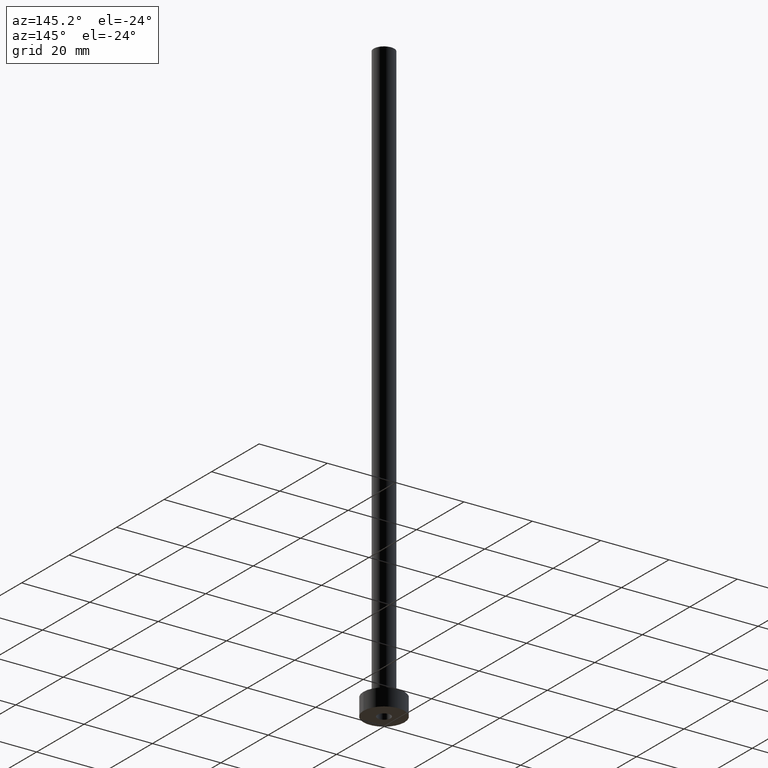
[diagram: clean part render]
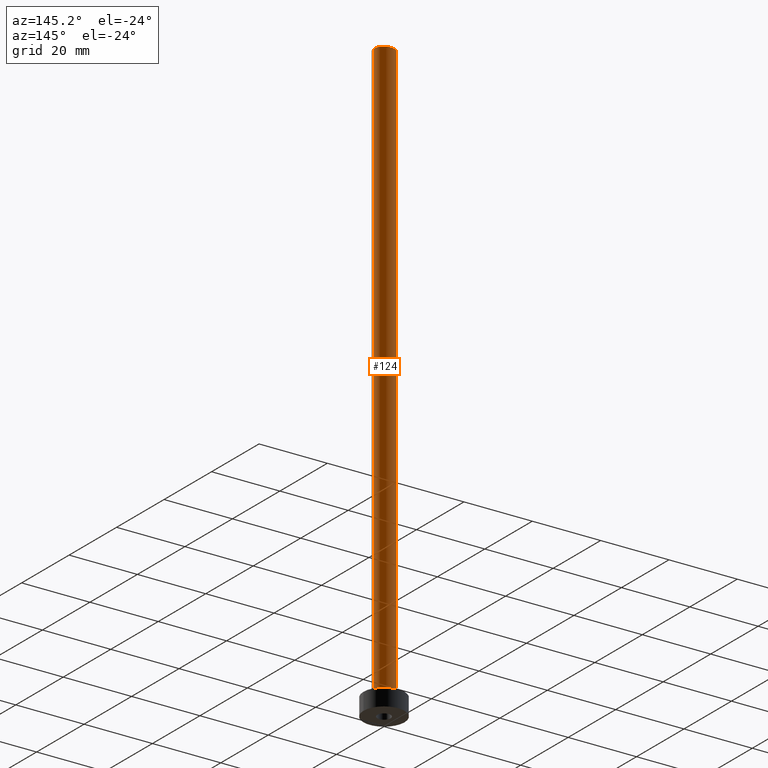
[diagram: same view with one face highlighted and labeled with its STEP entity id]
A machine part, auxiliary view. The second image highlights one B-rep face of the part: STEP entity #124.
In plain terms, the highlighted cylindrical surface (edge-blend (fillet) strip) has radius 3 mm, axis along (-0, -0, -1).
Its self-contained STEP definition (entity closure, byte-faithful):
#5 = DIRECTION ( 'NONE',  ( 1.000000000000000000, 0.000000000000000000, 0.000000000000000000 ) ) ;
#16 = EDGE_LOOP ( 'NONE', ( #342, #378, #158, #439 ) ) ;
#60 = LINE ( 'NONE', #226, #268 ) ;
#71 = DIRECTION ( 'NONE',  ( 0.000000000000000000, 0.000000000000000000, 1.000000000000000000 ) ) ;
#72 = VERTEX_POINT ( 'NONE', #101 ) ;
#81 = CARTESIAN_POINT ( 'NONE',  ( 0.000000000000000000, 0.000000000000000000, 5.299999999999998934 ) ) ;
#98 = DIRECTION ( 'NONE',  ( -1.000000000000000000, 0.000000000000000000, 0.000000000000000000 ) ) ;
#101 = CARTESIAN_POINT ( 'NONE',  ( 3.000000000000000444, 3.673940397442060361E-16, 175.0000000000000284 ) ) ;
#104 = CARTESIAN_POINT ( 'NONE',  ( 3.000000000000000444, 3.673940397442060361E-16, 175.0000000000000284 ) ) ;
#119 = VERTEX_POINT ( 'NONE', #234 ) ;
#124 = ADVANCED_FACE ( 'NONE', ( #302 ), #404, .T. ) ;
#128 = CIRCLE ( 'NONE', #446, 3.000000000000000444 ) ;
#139 = DIRECTION ( 'NONE',  ( -0.000000000000000000, -0.000000000000000000, -1.000000000000000000 ) ) ;
#143 = LINE ( 'NONE', #104, #338 ) ;
#158 = ORIENTED_EDGE ( 'NONE', *, *, #164, .T. ) ;
#164 = EDGE_CURVE ( 'NONE', #119, #178, #215, .T. ) ;
#178 = VERTEX_POINT ( 'NONE', #421 ) ;
#187 = AXIS2_PLACEMENT_3D ( 'NONE', #412, #139, #98 ) ;
#214 = CARTESIAN_POINT ( 'NONE',  ( -3.000000000000000444, 0.000000000000000000, 175.0000000000000284 ) ) ;
#215 = CIRCLE ( 'NONE', #222, 3.000000000000000444 ) ;
#221 = EDGE_CURVE ( 'NONE', #444, #178, #60, .T. ) ;
#222 = AXIS2_PLACEMENT_3D ( 'NONE', #81, #457, #5 ) ;
#226 = CARTESIAN_POINT ( 'NONE',  ( -3.000000000000000444, 0.000000000000000000, 175.0000000000000284 ) ) ;
#234 = CARTESIAN_POINT ( 'NONE',  ( 3.000000000000000444, 3.673940397442060361E-16, 5.299999999999998934 ) ) ;
#267 = DIRECTION ( 'NONE',  ( -0.000000000000000000, -0.000000000000000000, -1.000000000000000000 ) ) ;
#268 = VECTOR ( 'NONE', #292, 1000.000000000000000 ) ;
#292 = DIRECTION ( 'NONE',  ( -0.000000000000000000, -0.000000000000000000, -1.000000000000000000 ) ) ;
#302 = FACE_OUTER_BOUND ( 'NONE', #16, .T. ) ;
#306 = EDGE_CURVE ( 'NONE', #72, #119, #143, .T. ) ;
#336 = DIRECTION ( 'NONE',  ( 1.000000000000000000, 0.000000000000000000, 0.000000000000000000 ) ) ;
#338 = VECTOR ( 'NONE', #267, 1000.000000000000000 ) ;
#342 = ORIENTED_EDGE ( 'NONE', *, *, #427, .F. ) ;
#378 = ORIENTED_EDGE ( 'NONE', *, *, #306, .T. ) ;
#385 = CARTESIAN_POINT ( 'NONE',  ( 0.000000000000000000, 0.000000000000000000, 175.0000000000000284 ) ) ;
#404 = CYLINDRICAL_SURFACE ( 'NONE', #187, 3.000000000000000444 ) ;
#412 = CARTESIAN_POINT ( 'NONE',  ( 0.000000000000000000, 0.000000000000000000, 175.0000000000000284 ) ) ;
#421 = CARTESIAN_POINT ( 'NONE',  ( -3.000000000000000444, 0.000000000000000000, 5.299999999999998934 ) ) ;
#427 = EDGE_CURVE ( 'NONE', #72, #444, #128, .T. ) ;
#439 = ORIENTED_EDGE ( 'NONE', *, *, #221, .F. ) ;
#444 = VERTEX_POINT ( 'NONE', #214 ) ;
#446 = AXIS2_PLACEMENT_3D ( 'NONE', #385, #71, #336 ) ;
#457 = DIRECTION ( 'NONE',  ( 0.000000000000000000, 0.000000000000000000, 1.000000000000000000 ) ) ;